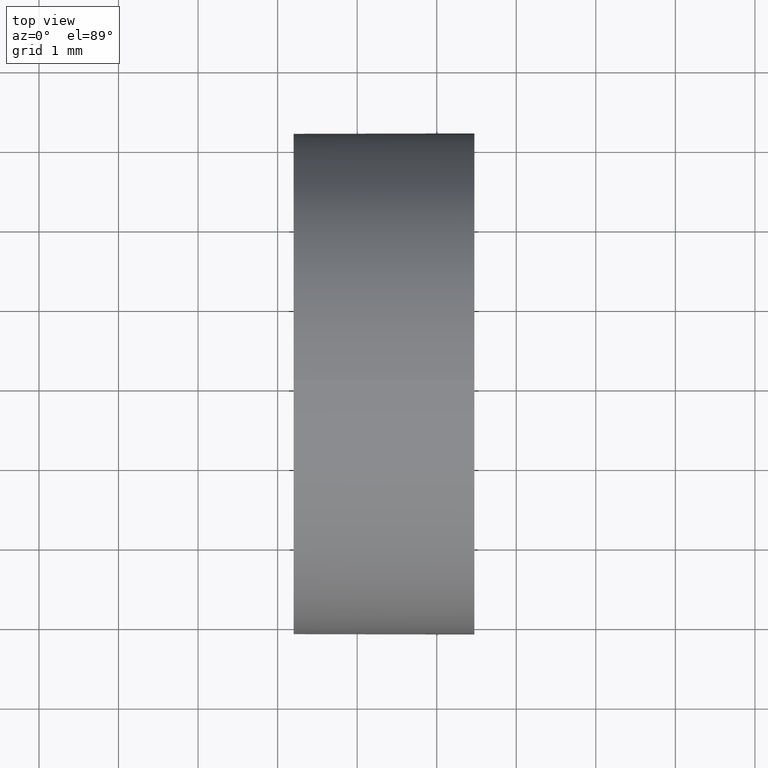
[diagram: clean part render]
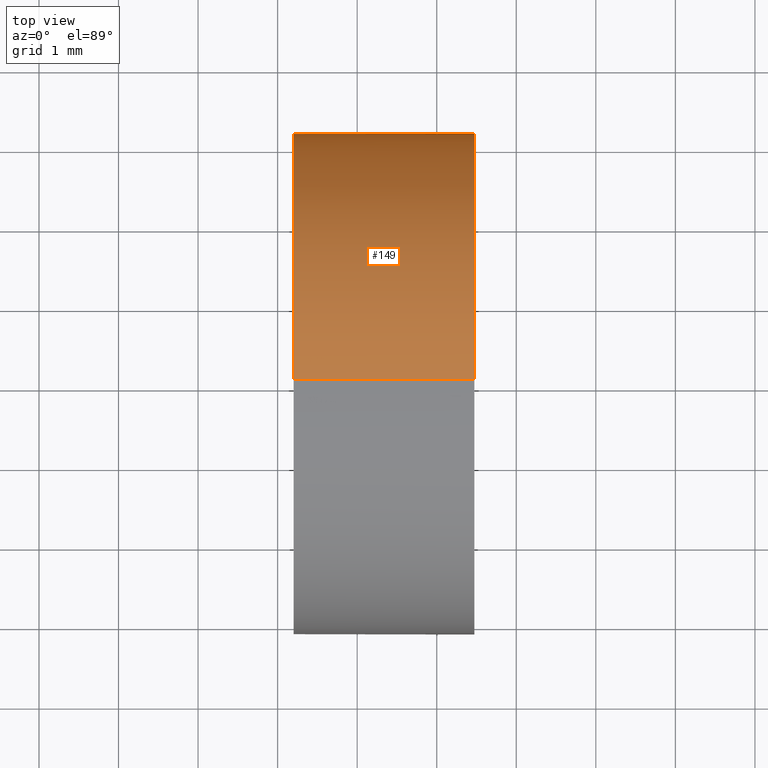
[diagram: same view with one face highlighted and labeled with its STEP entity id]
A machine part, top view. The second image highlights one B-rep face of the part: STEP entity #149.
In plain terms, the highlighted cylindrical surface (partial cylindrical patch) has radius 3.15 mm, axis along (-1, -0, -0).
Its self-contained STEP definition (entity closure, byte-faithful):
#1 = CIRCLE ( 'NONE', #78, 3.150000000000005200 ) ;
#2 = CARTESIAN_POINT ( 'NONE',  ( 21.15647192244426100, 13.03112609140304000, 3.150000000000001700 ) ) ;
#4 = CARTESIAN_POINT ( 'NONE',  ( 24.47341578959445800, 13.03112609140304000, 0.0000000000000000000 ) ) ;
#7 = CARTESIAN_POINT ( 'NONE',  ( 22.20087548928661300, 13.03112609140304000, 3.149999999999998100 ) ) ;
#10 = CARTESIAN_POINT ( 'NONE',  ( 21.15647192244426100, 13.03112609140304000, 0.0000000000000000000 ) ) ;
#14 = ORIENTED_EDGE ( 'NONE', *, *, #74, .F. ) ;
#19 = DIRECTION ( 'NONE',  ( 0.0000000000000000000, 0.0000000000000000000, 1.000000000000000000 ) ) ;
#23 = CARTESIAN_POINT ( 'NONE',  ( 24.47341578959445800, 13.03112609140304000, 3.150000000000005200 ) ) ;
#24 = CARTESIAN_POINT ( 'NONE',  ( 24.47341578959445800, 13.03112609140304000, 0.0000000000000000000 ) ) ;
#26 = CYLINDRICAL_SURFACE ( 'NONE', #166, 3.150000000000001700 ) ;
#27 = VERTEX_POINT ( 'NONE', #98 ) ;
#31 = EDGE_CURVE ( 'NONE', #42, #143, #75, .T. ) ;
#35 = DIRECTION ( 'NONE',  ( -1.000000000000000000, -0.0000000000000000000, -0.0000000000000000000 ) ) ;
#38 = VECTOR ( 'NONE', #180, 1000.000000000000000 ) ;
#42 = VERTEX_POINT ( 'NONE', #23 ) ;
#48 = ORIENTED_EDGE ( 'NONE', *, *, #68, .T. ) ;
#49 = ORIENTED_EDGE ( 'NONE', *, *, #151, .T. ) ;
#52 = VERTEX_POINT ( 'NONE', #61 ) ;
#58 = CARTESIAN_POINT ( 'NONE',  ( 22.20087548928661300, 13.03112609140304000, 0.0000000000000000000 ) ) ;
#61 = CARTESIAN_POINT ( 'NONE',  ( 22.20087548928661300, 13.03112609140304000, -3.149999999999998100 ) ) ;
#62 = CIRCLE ( 'NONE', #91, 3.150000000000005200 ) ;
#68 = EDGE_CURVE ( 'NONE', #27, #125, #1, .T. ) ;
#70 = EDGE_CURVE ( 'NONE', #125, #52, #112, .T. ) ;
#74 = EDGE_CURVE ( 'NONE', #143, #52, #163, .T. ) ;
#75 = LINE ( 'NONE', #2, #38 ) ;
#77 = DIRECTION ( 'NONE',  ( 0.0000000000000000000, 0.0000000000000000000, 1.000000000000000000 ) ) ;
#78 = AXIS2_PLACEMENT_3D ( 'NONE', #4, #137, #19 ) ;
#91 = AXIS2_PLACEMENT_3D ( 'NONE', #24, #129, #128 ) ;
#93 = CARTESIAN_POINT ( 'NONE',  ( 21.15647192244426100, 13.03112609140304000, -3.150000000000001700 ) ) ;
#97 = DIRECTION ( 'NONE',  ( -1.000000000000000000, -0.0000000000000000000, -0.0000000000000000000 ) ) ;
#98 = CARTESIAN_POINT ( 'NONE',  ( 24.47341578959445800, 16.18112609140305500, 3.857637417314159200E-016 ) ) ;
#112 = LINE ( 'NONE', #93, #175 ) ;
#116 = DIRECTION ( 'NONE',  ( 0.0000000000000000000, 0.0000000000000000000, 1.000000000000000000 ) ) ;
#125 = VERTEX_POINT ( 'NONE', #150 ) ;
#128 = DIRECTION ( 'NONE',  ( 0.0000000000000000000, 0.0000000000000000000, 1.000000000000000000 ) ) ;
#129 = DIRECTION ( 'NONE',  ( -1.000000000000000000, -0.0000000000000000000, -0.0000000000000000000 ) ) ;
#130 = ORIENTED_EDGE ( 'NONE', *, *, #70, .T. ) ;
#132 = ORIENTED_EDGE ( 'NONE', *, *, #31, .F. ) ;
#134 = EDGE_LOOP ( 'NONE', ( #48, #130, #14, #132, #49 ) ) ;
#137 = DIRECTION ( 'NONE',  ( -1.000000000000000000, -0.0000000000000000000, -0.0000000000000000000 ) ) ;
#143 = VERTEX_POINT ( 'NONE', #7 ) ;
#149 = ADVANCED_FACE ( 'NONE', ( #173 ), #26, .T. ) ;
#150 = CARTESIAN_POINT ( 'NONE',  ( 24.47341578959445800, 13.03112609140304000, -3.150000000000005200 ) ) ;
#151 = EDGE_CURVE ( 'NONE', #42, #27, #62, .T. ) ;
#160 = AXIS2_PLACEMENT_3D ( 'NONE', #58, #97, #77 ) ;
#163 = CIRCLE ( 'NONE', #160, 3.149999999999998100 ) ;
#166 = AXIS2_PLACEMENT_3D ( 'NONE', #10, #182, #116 ) ;
#173 = FACE_OUTER_BOUND ( 'NONE', #134, .T. ) ;
#175 = VECTOR ( 'NONE', #35, 1000.000000000000000 ) ;
#180 = DIRECTION ( 'NONE',  ( -1.000000000000000000, -0.0000000000000000000, -0.0000000000000000000 ) ) ;
#182 = DIRECTION ( 'NONE',  ( -1.000000000000000000, -0.0000000000000000000, -0.0000000000000000000 ) ) ;